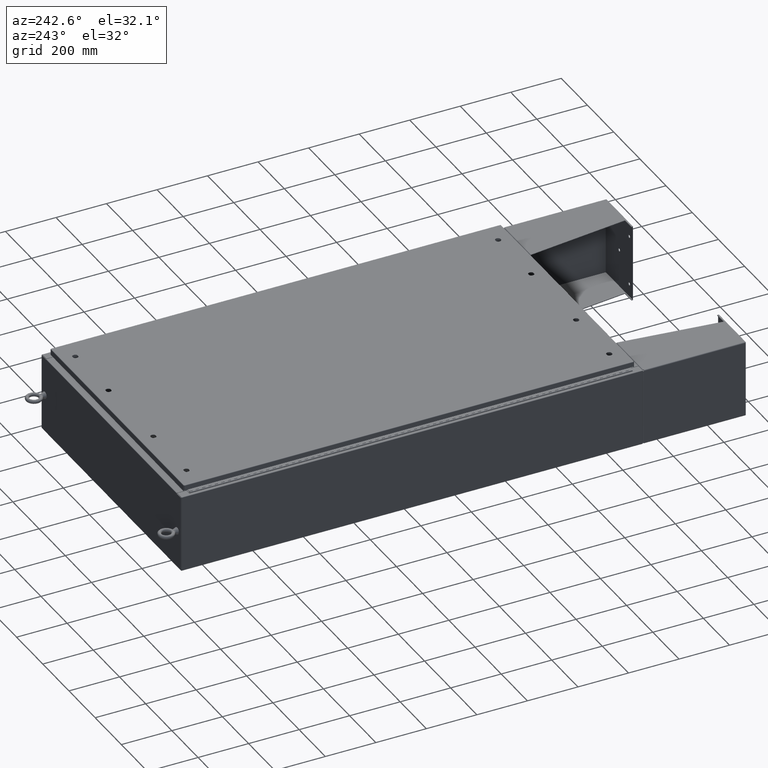
[diagram: clean part render]
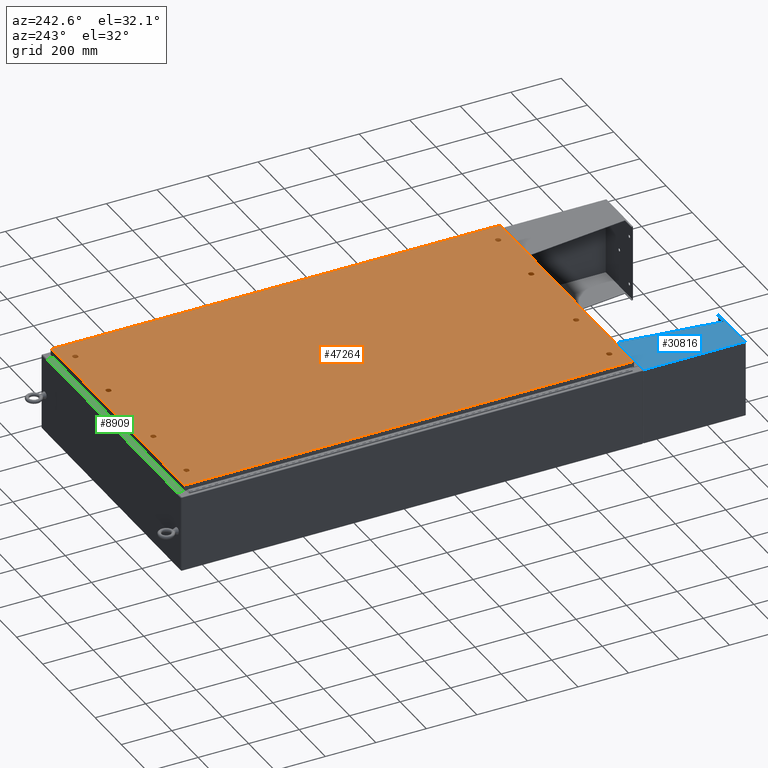
[diagram: same view with three faces highlighted in distinct colors, each labeled with its STEP entity id]
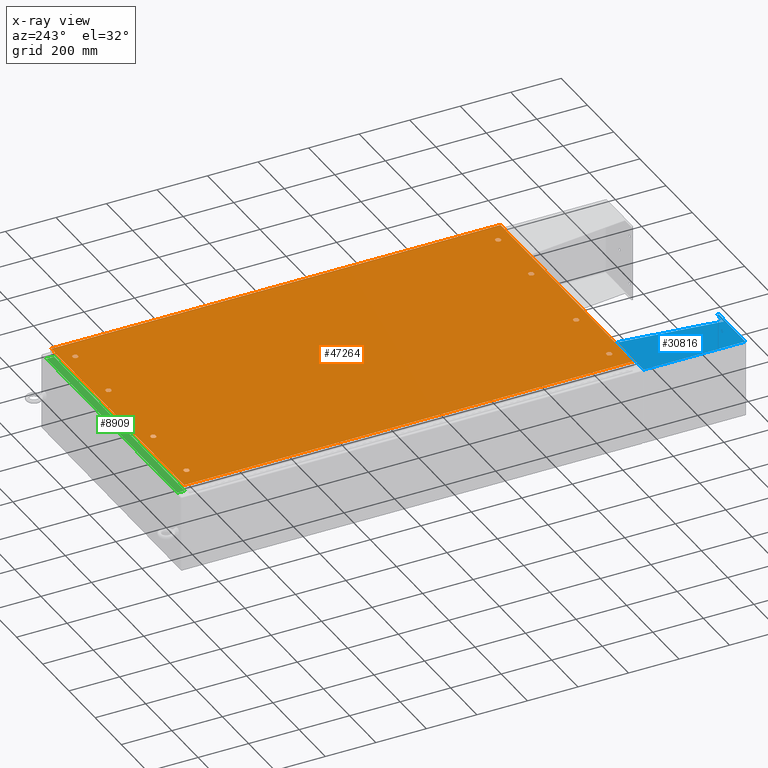
[diagram: x-ray of the same camera — body ghosted, the three highlighted faces saturated]
A machine part, auxiliary view with three faces highlighted in distinct colors.
The next image is the same camera in x-ray (body ghosted, the three faces saturated) — at least one of them is partly hidden behind the body in this view.
Their STEP definitions:

[orange] entity #47264 — the highlighted planar face has unit normal (0, 0, -1).
#293 = CIRCLE ( 'NONE', #4881, 0.4424999999999983400 ) ;
#585 = DIRECTION ( 'NONE',  ( -6.982962677686266700E-015, -6.982962677686266700E-015, 1.000000000000000000 ) ) ;
#710 = CARTESIAN_POINT ( 'NONE',  ( -16.90245237526787400, -32.54930000000000900, -2.493734682567285900E-013 ) ) ;
#895 = CARTESIAN_POINT ( 'NONE',  ( 6.550547624732095300, 33.33929999999998700, -4.574222958191068000E-014 ) ) ;
#905 = EDGE_LOOP ( 'NONE', ( #55209, #30829, #27251, #27932, #25449 ) ) ;
#1013 = DIRECTION ( 'NONE',  ( -1.000000000000000000, 0.0000000000000000000, 6.982962677686270700E-015 ) ) ;
#1198 = VECTOR ( 'NONE', #38113, 39.37007874015748100 ) ;
#2032 = AXIS2_PLACEMENT_3D ( 'NONE', #64810, #31920, #70377 ) ;
#2733 = VERTEX_POINT ( 'NONE', #14207 ) ;
#2934 = DIRECTION ( 'NONE',  ( 0.0000000000000000000, 0.0000000000000000000, 1.000000000000000000 ) ) ;
#3075 = CARTESIAN_POINT ( 'NONE',  ( 19.99030000000000100, 35.00630000000001000, 1.946441695485787500E-015 ) ) ;
#3089 = CIRCLE ( 'NONE', #41182, 0.4424999999999961700 ) ;
#3879 = ORIENTED_EDGE ( 'NONE', *, *, #32485, .F. ) ;
#4237 = CARTESIAN_POINT ( 'NONE',  ( -6.550547624732101500, 32.54930000000000200, 0.0000000000000000000 ) ) ;
#4491 = VERTEX_POINT ( 'NONE', #33247 ) ;
#4600 = VECTOR ( 'NONE', #66084, 39.37007874015748100 ) ;
#4881 = AXIS2_PLACEMENT_3D ( 'NONE', #6999, #45329, #12556 ) ;
#5014 = CARTESIAN_POINT ( 'NONE',  ( -16.70299999999999200, 32.94429999999999800, 0.0000000000000000000 ) ) ;
#5166 = CARTESIAN_POINT ( 'NONE',  ( 16.50354762473209600, -33.33929999999998700, -1.343139614880267800E-014 ) ) ;
#5335 = EDGE_CURVE ( 'NONE', #20873, #2733, #50172, .T. ) ;
#5337 = VERTEX_POINT ( 'NONE', #48410 ) ;
#5944 = EDGE_LOOP ( 'NONE', ( #41771, #13524, #65121, #58988, #30110 ) ) ;
#6321 = VECTOR ( 'NONE', #25660, 39.37007874015748100 ) ;
#6546 = CARTESIAN_POINT ( 'NONE',  ( -16.90245237526787000, 33.33929999999999400, 0.0000000000000000000 ) ) ;
#6698 = CARTESIAN_POINT ( 'NONE',  ( -16.70299999999999200, -32.94430000000000500, -2.521317385144146400E-013 ) ) ;
#6999 = CARTESIAN_POINT ( 'NONE',  ( -6.749999999999989300, -32.94429999999999100, -2.521317385144146900E-013 ) ) ;
#7023 = EDGE_CURVE ( 'NONE', #39996, #70562, #49230, .T. ) ;
#7587 = DIRECTION ( 'NONE',  ( 6.982962677686266700E-015, -0.0000000000000000000, 1.000000000000000000 ) ) ;
#7700 = CARTESIAN_POINT ( 'NONE',  ( -6.550547624732098000, -33.33929999999998700, -2.548900087721007400E-013 ) ) ;
#7892 = EDGE_CURVE ( 'NONE', #15484, #64513, #24035, .T. ) ;
#8643 = VERTEX_POINT ( 'NONE', #48140 ) ;
#9080 = FACE_OUTER_BOUND ( 'NONE', #47748, .T. ) ;
#9103 = CARTESIAN_POINT ( 'NONE',  ( -16.70299999999999200, 32.94429999999999800, 0.0000000000000000000 ) ) ;
#9234 = DIRECTION ( 'NONE',  ( 0.0000000000000000000, -1.000000000000000000, 0.0000000000000000000 ) ) ;
#9278 = CARTESIAN_POINT ( 'NONE',  ( -6.550547624732095300, 33.33929999999998700, 0.0000000000000000000 ) ) ;
#9435 = VECTOR ( 'NONE', #40924, 39.37007874015748100 ) ;
#9884 = CARTESIAN_POINT ( 'NONE',  ( 16.50354762473209600, 33.33929999999998700, -2.414586126232980000E-013 ) ) ;
#9920 = EDGE_CURVE ( 'NONE', #19089, #11204, #28032, .T. ) ;
#10017 = VERTEX_POINT ( 'NONE', #17638 ) ;
#10317 = CARTESIAN_POINT ( 'NONE',  ( -6.307499999999988600, 32.94429999999999800, 0.0000000000000000000 ) ) ;
#10461 = VECTOR ( 'NONE', #17291, 39.37007874015748100 ) ;
#10559 = VERTEX_POINT ( 'NONE', #27455 ) ;
#10655 = DIRECTION ( 'NONE',  ( 1.000000000000000000, -1.095739467627832000E-014, 6.982962677686152300E-015 ) ) ;
#10833 = FACE_BOUND ( 'NONE', #58554, .T. ) ;
#10961 = VERTEX_POINT ( 'NONE', #68908 ) ;
#11141 = DIRECTION ( 'NONE',  ( -1.000000000000000000, 0.0000000000000000000, 7.785697190086082800E-029 ) ) ;
#11204 = VERTEX_POINT ( 'NONE', #42240 ) ;
#11245 = ORIENTED_EDGE ( 'NONE', *, *, #7892, .T. ) ;
#11616 = DIRECTION ( 'NONE',  ( -6.982962677686266700E-015, -6.982962677686266700E-015, 1.000000000000000000 ) ) ;
#11640 = LINE ( 'NONE', #28782, #27803 ) ;
#11650 = EDGE_CURVE ( 'NONE', #43453, #37299, #62934, .T. ) ;
#11653 = CARTESIAN_POINT ( 'NONE',  ( -16.90245237526787400, 32.54930000000000200, 0.0000000000000000000 ) ) ;
#11661 = EDGE_CURVE ( 'NONE', #13590, #43453, #61194, .T. ) ;
#11750 = EDGE_CURVE ( 'NONE', #47706, #39996, #39836, .T. ) ;
#11770 = CARTESIAN_POINT ( 'NONE',  ( -6.550547624732101500, 32.54930000000000200, 0.0000000000000000000 ) ) ;
#12152 = AXIS2_PLACEMENT_3D ( 'NONE', #66812, #33941, #1013 ) ;
#12286 = CIRCLE ( 'NONE', #15290, 0.4424999999999983400 ) ;
#12393 = DIRECTION ( 'NONE',  ( -1.000000000000000000, -1.095739467627835000E-014, 6.982962677686269100E-015 ) ) ;
#12556 = DIRECTION ( 'NONE',  ( 0.0000000000000000000, 1.000000000000000000, 6.982962677686270700E-015 ) ) ;
#12589 = FACE_BOUND ( 'NONE', #47358, .T. ) ;
#12682 = VECTOR ( 'NONE', #9234, 39.37007874015748100 ) ;
#13003 = ORIENTED_EDGE ( 'NONE', *, *, #20647, .F. ) ;
#13006 = CIRCLE ( 'NONE', #59779, 0.4424999999999972800 ) ;
#13018 = CARTESIAN_POINT ( 'NONE',  ( 16.50354762473209600, 33.33929999999998700, -2.414586126232980000E-013 ) ) ;
#13039 = VERTEX_POINT ( 'NONE', #33840 ) ;
#13383 = VERTEX_POINT ( 'NONE', #16495 ) ;
#13434 = AXIS2_PLACEMENT_3D ( 'NONE', #5014, #2934, #18056 ) ;
#13485 = DIRECTION ( 'NONE',  ( 0.0000000000000000000, 0.0000000000000000000, 1.000000000000000000 ) ) ;
#13524 = ORIENTED_EDGE ( 'NONE', *, *, #66637, .F. ) ;
#13590 = VERTEX_POINT ( 'NONE', #710 ) ;
#13862 = ORIENTED_EDGE ( 'NONE', *, *, #27790, .F. ) ;
#13873 = CARTESIAN_POINT ( 'NONE',  ( -16.70299999999999200, -32.94430000000000500, -2.521317385144146400E-013 ) ) ;
#13954 = DIRECTION ( 'NONE',  ( -1.000000000000000000, -1.095739467627832000E-014, 6.982962677686228800E-015 ) ) ;
#14088 = CIRCLE ( 'NONE', #15137, 0.4424999999999972800 ) ;
#14154 = AXIS2_PLACEMENT_3D ( 'NONE', #57453, #24482, #62973 ) ;
#14207 = CARTESIAN_POINT ( 'NONE',  ( -6.949452375267867400, 33.33929999999999400, 0.0000000000000000000 ) ) ;
#14401 = LINE ( 'NONE', #47548, #12682 ) ;
#14662 = DIRECTION ( 'NONE',  ( 1.000000000000000000, 0.0000000000000000000, 0.0000000000000000000 ) ) ;
#14810 = EDGE_CURVE ( 'NONE', #38651, #46580, #37522, .T. ) ;
#14931 = EDGE_CURVE ( 'NONE', #11204, #39364, #69182, .T. ) ;
#15098 = EDGE_CURVE ( 'NONE', #4491, #63920, #11640, .T. ) ;
#15137 = AXIS2_PLACEMENT_3D ( 'NONE', #56071, #23141, #61591 ) ;
#15290 = AXIS2_PLACEMENT_3D ( 'NONE', #6698, #16300, #20172 ) ;
#15484 = VERTEX_POINT ( 'NONE', #69246 ) ;
#15496 = EDGE_LOOP ( 'NONE', ( #22967, #63309, #29728, #50280, #26157 ) ) ;
#15507 = VERTEX_POINT ( 'NONE', #52352 ) ;
#15843 = CARTESIAN_POINT ( 'NONE',  ( -16.90245237526787000, -33.33930000000000100, 0.0000000000000000000 ) ) ;
#15876 = LINE ( 'NONE', #32760, #1198 ) ;
#16300 = DIRECTION ( 'NONE',  ( -0.0000000000000000000, -6.982962677686266700E-015, 1.000000000000000000 ) ) ;
#16495 = CARTESIAN_POINT ( 'NONE',  ( -6.949452375267869200, 32.54930000000000200, 0.0000000000000000000 ) ) ;
#16828 = CARTESIAN_POINT ( 'NONE',  ( 6.749999999999985800, 32.94429999999999800, -4.713499807438223100E-014 ) ) ;
#16922 = EDGE_CURVE ( 'NONE', #34700, #18100, #23106, .T. ) ;
#17170 = CARTESIAN_POINT ( 'NONE',  ( -6.749999999999985800, 32.94429999999999800, 0.0000000000000000000 ) ) ;
#17291 = DIRECTION ( 'NONE',  ( 1.000000000000000000, -0.0000000000000000000, -0.0000000000000000000 ) ) ;
#17421 = DIRECTION ( 'NONE',  ( 0.0000000000000000000, 0.0000000000000000000, 1.000000000000000000 ) ) ;
#17509 = AXIS2_PLACEMENT_3D ( 'NONE', #70298, #17421, #27568 ) ;
#17526 = CARTESIAN_POINT ( 'NONE',  ( -6.749999999999989300, -32.94429999999999100, -2.521317385144146900E-013 ) ) ;
#17638 = CARTESIAN_POINT ( 'NONE',  ( 7.192499999999983000, 32.94429999999999800, -5.022495905925838200E-014 ) ) ;
#17715 = AXIS2_PLACEMENT_3D ( 'NONE', #40537, #7587, #45932 ) ;
#17804 = ORIENTED_EDGE ( 'NONE', *, *, #53003, .T. ) ;
#17894 = DIRECTION ( 'NONE',  ( -0.0000000000000000000, -6.982962677686266700E-015, 1.000000000000000000 ) ) ;
#18056 = DIRECTION ( 'NONE',  ( 1.000000000000000000, 0.0000000000000000000, 0.0000000000000000000 ) ) ;
#18100 = VERTEX_POINT ( 'NONE', #57771 ) ;
#18474 = EDGE_CURVE ( 'NONE', #2733, #13383, #59860, .T. ) ;
#18628 = DIRECTION ( 'NONE',  ( 0.0000000000000000000, 1.000000000000000000, 0.0000000000000000000 ) ) ;
#18671 = CARTESIAN_POINT ( 'NONE',  ( -16.70299999999999200, 32.94429999999999800, 0.0000000000000000000 ) ) ;
#18818 = CIRCLE ( 'NONE', #60801, 0.4424999999999983400 ) ;
#18980 = ORIENTED_EDGE ( 'NONE', *, *, #24139, .F. ) ;
#19089 = VERTEX_POINT ( 'NONE', #57357 ) ;
#19317 = DIRECTION ( 'NONE',  ( 0.0000000000000000000, 1.000000000000000000, 6.982962677686270700E-015 ) ) ;
#20172 = DIRECTION ( 'NONE',  ( 0.0000000000000000000, 1.000000000000000000, 6.982962677686270700E-015 ) ) ;
#20317 = VECTOR ( 'NONE', #35226, 39.37007874015748100 ) ;
#20647 = EDGE_CURVE ( 'NONE', #44249, #57509, #12286, .T. ) ;
#20829 = LINE ( 'NONE', #71178, #6321 ) ;
#20873 = VERTEX_POINT ( 'NONE', #9278 ) ;
#21019 = VECTOR ( 'NONE', #22581, 39.37007874015748100 ) ;
#21283 = ORIENTED_EDGE ( 'NONE', *, *, #54028, .F. ) ;
#21690 = DIRECTION ( 'NONE',  ( 6.982962677686266700E-015, -0.0000000000000000000, 1.000000000000000000 ) ) ;
#22191 = DIRECTION ( 'NONE',  ( -1.000000000000000000, 0.0000000000000000000, 6.982962677686251700E-015 ) ) ;
#22581 = DIRECTION ( 'NONE',  ( -1.000000000000000000, 0.0000000000000000000, 7.785697190086040200E-029 ) ) ;
#22702 = LINE ( 'NONE', #34034, #50163 ) ;
#22728 = CARTESIAN_POINT ( 'NONE',  ( 16.70299999999999200, -32.94429999999999100, -9.280357398645096400E-015 ) ) ;
#22895 = DIRECTION ( 'NONE',  ( 0.0000000000000000000, 1.000000000000000000, 6.982962677686270700E-015 ) ) ;
#22967 = ORIENTED_EDGE ( 'NONE', *, *, #26527, .F. ) ;
#23081 = CARTESIAN_POINT ( 'NONE',  ( -16.50354762473210700, 32.54930000000000200, 0.0000000000000000000 ) ) ;
#23106 = CIRCLE ( 'NONE', #35388, 0.4424999999999961700 ) ;
#23141 = DIRECTION ( 'NONE',  ( -6.982962677686266700E-015, -6.982962677686266700E-015, 1.000000000000000000 ) ) ;
#23197 = EDGE_CURVE ( 'NONE', #70917, #62651, #41944, .T. ) ;
#23575 = FACE_BOUND ( 'NONE', #15496, .T. ) ;
#23710 = LINE ( 'NONE', #68069, #20317 ) ;
#23925 = DIRECTION ( 'NONE',  ( 1.000000000000000000, 1.095739467627835000E-014, 7.785697190085976300E-029 ) ) ;
#24035 = LINE ( 'NONE', #53313, #53293 ) ;
#24049 = DIRECTION ( 'NONE',  ( 1.000000000000000000, 0.0000000000000000000, 0.0000000000000000000 ) ) ;
#24139 = EDGE_CURVE ( 'NONE', #18100, #64523, #15876, .T. ) ;
#24376 = CARTESIAN_POINT ( 'NONE',  ( 6.949452375267867400, 33.33929999999999400, 0.0000000000000000000 ) ) ;
#24482 = DIRECTION ( 'NONE',  ( 0.0000000000000000000, 0.0000000000000000000, -1.000000000000000000 ) ) ;
#24505 = EDGE_CURVE ( 'NONE', #32435, #68309, #20829, .T. ) ;
#24510 = ORIENTED_EDGE ( 'NONE', *, *, #65850, .F. ) ;
#24788 = CARTESIAN_POINT ( 'NONE',  ( 16.50354762473210700, -32.54929999999999500, -7.914855633430561400E-015 ) ) ;
#25040 = VECTOR ( 'NONE', #56244, 39.37007874015748100 ) ;
#25233 = VECTOR ( 'NONE', #13954, 39.37007874015748100 ) ;
#25449 = ORIENTED_EDGE ( 'NONE', *, *, #28658, .F. ) ;
#25635 = LINE ( 'NONE', #62646, #9435 ) ;
#25660 = DIRECTION ( 'NONE',  ( -1.000000000000000000, 1.095739467627832000E-014, 0.0000000000000000000 ) ) ;
#25739 = DIRECTION ( 'NONE',  ( 6.982962677686266700E-015, -0.0000000000000000000, 1.000000000000000000 ) ) ;
#25852 = EDGE_CURVE ( 'NONE', #15507, #47544, #35520, .T. ) ;
#26050 = ORIENTED_EDGE ( 'NONE', *, *, #11661, .F. ) ;
#26157 = ORIENTED_EDGE ( 'NONE', *, *, #23197, .F. ) ;
#26202 = ORIENTED_EDGE ( 'NONE', *, *, #29718, .F. ) ;
#26421 = VECTOR ( 'NONE', #12393, 39.37007874015748100 ) ;
#26527 = EDGE_CURVE ( 'NONE', #13383, #70917, #54196, .T. ) ;
#26713 = CARTESIAN_POINT ( 'NONE',  ( -16.50354762473209600, 33.33929999999998700, 0.0000000000000000000 ) ) ;
#27216 = AXIS2_PLACEMENT_3D ( 'NONE', #17170, #68561, #70843 ) ;
#27251 = ORIENTED_EDGE ( 'NONE', *, *, #14810, .F. ) ;
#27455 = CARTESIAN_POINT ( 'NONE',  ( -19.99030000000000800, 35.00630000000000300, 1.929367645525385800E-015 ) ) ;
#27479 = CARTESIAN_POINT ( 'NONE',  ( 6.550547624732101500, 32.54930000000000200, -4.574222958191072400E-014 ) ) ;
#27568 = DIRECTION ( 'NONE',  ( 1.000000000000000000, 0.0000000000000000000, 0.0000000000000000000 ) ) ;
#27770 = DIRECTION ( 'NONE',  ( 6.982962677686266700E-015, -0.0000000000000000000, 1.000000000000000000 ) ) ;
#27790 = EDGE_CURVE ( 'NONE', #8643, #19089, #43852, .T. ) ;
#27803 = VECTOR ( 'NONE', #28378, 39.37007874015748100 ) ;
#27835 = AXIS2_PLACEMENT_3D ( 'NONE', #44831, #21690, #32470 ) ;
#27932 = ORIENTED_EDGE ( 'NONE', *, *, #55085, .F. ) ;
#28032 = CIRCLE ( 'NONE', #27835, 0.4424999999999961700 ) ;
#28053 = VERTEX_POINT ( 'NONE', #41330 ) ;
#28069 = CARTESIAN_POINT ( 'NONE',  ( -16.50354762473210700, -32.54930000000000900, -2.493734682567286400E-013 ) ) ;
#28175 = CARTESIAN_POINT ( 'NONE',  ( -16.70299999999999200, -32.94430000000000500, -2.521317385144146400E-013 ) ) ;
#28197 = DIRECTION ( 'NONE',  ( -0.0000000000000000000, -6.982962677686266700E-015, 1.000000000000000000 ) ) ;
#28234 = EDGE_CURVE ( 'NONE', #37299, #44249, #47152, .T. ) ;
#28255 = AXIS2_PLACEMENT_3D ( 'NONE', #44410, #11616, #49868 ) ;
#28378 = DIRECTION ( 'NONE',  ( -1.000000000000000000, -0.0000000000000000000, -6.982962677686228100E-015 ) ) ;
#28383 = DIRECTION ( 'NONE',  ( 1.000000000000000000, 0.0000000000000000000, -6.982962677686286400E-015 ) ) ;
#28412 = VERTEX_POINT ( 'NONE', #53824 ) ;
#28658 = EDGE_CURVE ( 'NONE', #5337, #38361, #47084, .T. ) ;
#28782 = CARTESIAN_POINT ( 'NONE',  ( 6.550547624732104200, -32.54930000000000200, -2.036312386748179300E-013 ) ) ;
#29103 = DIRECTION ( 'NONE',  ( 1.000000000000000000, 0.0000000000000000000, 6.982962677686271400E-015 ) ) ;
#29209 = ORIENTED_EDGE ( 'NONE', *, *, #11650, .F. ) ;
#29231 = ORIENTED_EDGE ( 'NONE', *, *, #66279, .F. ) ;
#29627 = DIRECTION ( 'NONE',  ( -6.982962677686266700E-015, -6.982962677686266700E-015, 1.000000000000000000 ) ) ;
#29718 = EDGE_CURVE ( 'NONE', #10961, #15507, #23710, .T. ) ;
#29728 = ORIENTED_EDGE ( 'NONE', *, *, #5335, .F. ) ;
#29819 = DIRECTION ( 'NONE',  ( -6.982962677686266700E-015, -6.982962677686266700E-015, 1.000000000000000000 ) ) ;
#30110 = ORIENTED_EDGE ( 'NONE', *, *, #7023, .F. ) ;
#30829 = ORIENTED_EDGE ( 'NONE', *, *, #55548, .F. ) ;
#30932 = EDGE_LOOP ( 'NONE', ( #37066, #46143, #13862, #51331, #24510 ) ) ;
#31920 = DIRECTION ( 'NONE',  ( -6.982962677686266700E-015, -6.982962677686266700E-015, 1.000000000000000000 ) ) ;
#32352 = ORIENTED_EDGE ( 'NONE', *, *, #69688, .F. ) ;
#32435 = VERTEX_POINT ( 'NONE', #26713 ) ;
#32470 = DIRECTION ( 'NONE',  ( -1.000000000000000000, 0.0000000000000000000, 6.982962677686304600E-015 ) ) ;
#32485 = EDGE_CURVE ( 'NONE', #10017, #33201, #13006, .T. ) ;
#32760 = CARTESIAN_POINT ( 'NONE',  ( 16.50354762473210700, -32.54929999999999500, -7.914855633430561400E-015 ) ) ;
#32968 = CARTESIAN_POINT ( 'NONE',  ( -16.50354762473210700, -32.54930000000000900, -2.493734682567286400E-013 ) ) ;
#32984 = EDGE_LOOP ( 'NONE', ( #37433, #3879, #21283, #62246, #36149 ) ) ;
#33181 = EDGE_CURVE ( 'NONE', #67248, #5337, #63876, .T. ) ;
#33201 = VERTEX_POINT ( 'NONE', #24376 ) ;
#33247 = CARTESIAN_POINT ( 'NONE',  ( 6.949452375267873600, -32.54930000000000200, 0.0000000000000000000 ) ) ;
#33522 = CARTESIAN_POINT ( 'NONE',  ( 6.749999999999989300, -32.94429999999999800, -2.049967404400324900E-013 ) ) ;
#33596 = VERTEX_POINT ( 'NONE', #27479 ) ;
#33840 = CARTESIAN_POINT ( 'NONE',  ( -19.99030000000000800, -35.00630000000001000, 1.946441695485787500E-015 ) ) ;
#33941 = DIRECTION ( 'NONE',  ( 6.982962677686266700E-015, -0.0000000000000000000, 1.000000000000000000 ) ) ;
#34034 = CARTESIAN_POINT ( 'NONE',  ( 6.550547624732101500, 32.54930000000000200, -4.574222958191072400E-014 ) ) ;
#34233 = EDGE_CURVE ( 'NONE', #47544, #4491, #40633, .T. ) ;
#34299 = ORIENTED_EDGE ( 'NONE', *, *, #53835, .T. ) ;
#34700 = VERTEX_POINT ( 'NONE', #56510 ) ;
#34765 = ORIENTED_EDGE ( 'NONE', *, *, #15098, .F. ) ;
#35021 = CIRCLE ( 'NONE', #12152, 0.4424999999999983400 ) ;
#35226 = DIRECTION ( 'NONE',  ( 1.000000000000000000, -1.095739467627835000E-014, 6.982962677686171300E-015 ) ) ;
#35388 = AXIS2_PLACEMENT_3D ( 'NONE', #22728, #29819, #29103 ) ;
#35520 = CIRCLE ( 'NONE', #28255, 0.4424999999999972800 ) ;
#35749 = VECTOR ( 'NONE', #53725, 39.37007874015748100 ) ;
#36111 = ORIENTED_EDGE ( 'NONE', *, *, #62863, .F. ) ;
#36149 = ORIENTED_EDGE ( 'NONE', *, *, #36724, .F. ) ;
#36481 = VECTOR ( 'NONE', #11141, 39.37007874015748100 ) ;
#36724 = EDGE_CURVE ( 'NONE', #55601, #33596, #48468, .T. ) ;
#36887 = AXIS2_PLACEMENT_3D ( 'NONE', #28175, #28197, #45675 ) ;
#37066 = ORIENTED_EDGE ( 'NONE', *, *, #14931, .F. ) ;
#37299 = VERTEX_POINT ( 'NONE', #39345 ) ;
#37433 = ORIENTED_EDGE ( 'NONE', *, *, #57543, .F. ) ;
#37522 = LINE ( 'NONE', #56360, #21019 ) ;
#37898 = EDGE_CURVE ( 'NONE', #57509, #13590, #67327, .T. ) ;
#38113 = DIRECTION ( 'NONE',  ( -1.000000000000000000, -0.0000000000000000000, -6.982962677686306200E-015 ) ) ;
#38361 = VERTEX_POINT ( 'NONE', #43226 ) ;
#38391 = FACE_BOUND ( 'NONE', #5944, .T. ) ;
#38605 = CIRCLE ( 'NONE', #49541, 0.4424999999999983400 ) ;
#38651 = VERTEX_POINT ( 'NONE', #64177 ) ;
#38752 = CARTESIAN_POINT ( 'NONE',  ( -6.550547624732094400, 33.33929999999998700, 0.0000000000000000000 ) ) ;
#38867 = LINE ( 'NONE', #50761, #51559 ) ;
#39094 = DIRECTION ( 'NONE',  ( 1.000000000000000000, 0.0000000000000000000, 6.982962677686287200E-015 ) ) ;
#39153 = DIRECTION ( 'NONE',  ( -1.000000000000000000, -0.0000000000000000000, -0.0000000000000000000 ) ) ;
#39345 = CARTESIAN_POINT ( 'NONE',  ( -16.50354762473209600, -33.33930000000000100, -2.548900087721006900E-013 ) ) ;
#39364 = VERTEX_POINT ( 'NONE', #9884 ) ;
#39836 = LINE ( 'NONE', #23081, #25040 ) ;
#39996 = VERTEX_POINT ( 'NONE', #41784 ) ;
#40537 = CARTESIAN_POINT ( 'NONE',  ( 6.749999999999985800, 32.94429999999999800, -4.713499807438223100E-014 ) ) ;
#40633 = CIRCLE ( 'NONE', #68696, 0.4424999999999972800 ) ;
#40924 = DIRECTION ( 'NONE',  ( 1.000000000000000000, 0.0000000000000000000, -6.982962677686265900E-015 ) ) ;
#41182 = AXIS2_PLACEMENT_3D ( 'NONE', #9103, #47404, #14662 ) ;
#41330 = CARTESIAN_POINT ( 'NONE',  ( 6.949452375267869200, 32.54930000000000200, -4.852776656685374400E-014 ) ) ;
#41760 = FACE_BOUND ( 'NONE', #32984, .T. ) ;
#41771 = ORIENTED_EDGE ( 'NONE', *, *, #11750, .F. ) ;
#41784 = CARTESIAN_POINT ( 'NONE',  ( -16.50354762473210700, 32.54930000000000200, 0.0000000000000000000 ) ) ;
#41851 = AXIS2_PLACEMENT_3D ( 'NONE', #13873, #52141, #19317 ) ;
#41944 = CIRCLE ( 'NONE', #27216, 0.4424999999999972800 ) ;
#42240 = CARTESIAN_POINT ( 'NONE',  ( 16.90245237526787000, 33.33929999999999400, 0.0000000000000000000 ) ) ;
#42409 = EDGE_CURVE ( 'NONE', #28412, #8643, #25635, .T. ) ;
#43226 = CARTESIAN_POINT ( 'NONE',  ( -6.307499999999991200, -32.94429999999999100, -2.521317385144146900E-013 ) ) ;
#43453 = VERTEX_POINT ( 'NONE', #15843 ) ;
#43852 = CIRCLE ( 'NONE', #44517, 0.4424999999999961700 ) ;
#44249 = VERTEX_POINT ( 'NONE', #49692 ) ;
#44314 = CARTESIAN_POINT ( 'NONE',  ( 19.99030000000000100, 35.00630000000001000, 1.946441695485787500E-015 ) ) ;
#44410 = CARTESIAN_POINT ( 'NONE',  ( 6.749999999999989300, -32.94429999999999800, -2.049967404400324900E-013 ) ) ;
#44517 = AXIS2_PLACEMENT_3D ( 'NONE', #60706, #27770, #66290 ) ;
#44566 = CARTESIAN_POINT ( 'NONE',  ( -16.26049999999999300, 32.94429999999999800, 0.0000000000000000000 ) ) ;
#44831 = CARTESIAN_POINT ( 'NONE',  ( 16.70299999999999200, 32.94429999999999800, -2.428513811157696100E-013 ) ) ;
#45013 = EDGE_CURVE ( 'NONE', #70562, #32435, #18818, .T. ) ;
#45329 = DIRECTION ( 'NONE',  ( -0.0000000000000000000, -6.982962677686266700E-015, 1.000000000000000000 ) ) ;
#45675 = DIRECTION ( 'NONE',  ( 0.0000000000000000000, 1.000000000000000000, 6.982962677686270700E-015 ) ) ;
#45932 = DIRECTION ( 'NONE',  ( -1.000000000000000000, 0.0000000000000000000, 6.982962677686251700E-015 ) ) ;
#46143 = ORIENTED_EDGE ( 'NONE', *, *, #9920, .F. ) ;
#46248 = CARTESIAN_POINT ( 'NONE',  ( -6.749999999999985800, 32.94429999999999800, 0.0000000000000000000 ) ) ;
#46358 = AXIS2_PLACEMENT_3D ( 'NONE', #50629, #17894, #56189 ) ;
#46366 = PLANE ( 'NONE',  #14154 ) ;
#46580 = VERTEX_POINT ( 'NONE', #51740 ) ;
#46775 = VECTOR ( 'NONE', #39153, 39.37007874015748100 ) ;
#47084 = CIRCLE ( 'NONE', #46358, 0.4424999999999983400 ) ;
#47152 = CIRCLE ( 'NONE', #41851, 0.4424999999999983400 ) ;
#47264 = ADVANCED_FACE ( 'NONE', ( #54571, #12589, #10833, #67521, #41760, #52826, #38391, #23575, #9080 ), #46366, .F. ) ;
#47358 = EDGE_LOOP ( 'NONE', ( #18980, #47591, #29231, #32352, #36111 ) ) ;
#47404 = DIRECTION ( 'NONE',  ( 0.0000000000000000000, 0.0000000000000000000, 1.000000000000000000 ) ) ;
#47485 = VECTOR ( 'NONE', #23925, 39.37007874015748100 ) ;
#47544 = VERTEX_POINT ( 'NONE', #48720 ) ;
#47548 = CARTESIAN_POINT ( 'NONE',  ( -19.99030000000000800, 35.00630000000000300, 1.929367645525385800E-015 ) ) ;
#47591 = ORIENTED_EDGE ( 'NONE', *, *, #16922, .F. ) ;
#47706 = VERTEX_POINT ( 'NONE', #11653 ) ;
#47748 = EDGE_LOOP ( 'NONE', ( #64525, #11245, #34299, #17804 ) ) ;
#47874 = ORIENTED_EDGE ( 'NONE', *, *, #34233, .F. ) ;
#48140 = CARTESIAN_POINT ( 'NONE',  ( 16.90245237526787400, 32.54930000000000200, -2.442441496082410700E-013 ) ) ;
#48301 = CARTESIAN_POINT ( 'NONE',  ( -16.50354762473209600, -33.33930000000000100, -2.548900087721006900E-013 ) ) ;
#48410 = CARTESIAN_POINT ( 'NONE',  ( -6.550547624732098800, -33.33929999999998700, -2.548900087721007400E-013 ) ) ;
#48468 = CIRCLE ( 'NONE', #60928, 0.4424999999999972800 ) ;
#48720 = CARTESIAN_POINT ( 'NONE',  ( 7.192499999999986600, -32.94429999999999800, -2.019067794551563100E-013 ) ) ;
#49230 = CIRCLE ( 'NONE', #13434, 0.4424999999999983400 ) ;
#49541 = AXIS2_PLACEMENT_3D ( 'NONE', #62518, #29627, #68145 ) ;
#49692 = CARTESIAN_POINT ( 'NONE',  ( -16.26049999999999300, -32.94430000000000500, -2.521317385144146400E-013 ) ) ;
#49868 = DIRECTION ( 'NONE',  ( 1.000000000000000000, 0.0000000000000000000, 6.982962677686287200E-015 ) ) ;
#50163 = VECTOR ( 'NONE', #28383, 39.37007874015748100 ) ;
#50172 = LINE ( 'NONE', #38752, #35749 ) ;
#50280 = ORIENTED_EDGE ( 'NONE', *, *, #58291, .F. ) ;
#50629 = CARTESIAN_POINT ( 'NONE',  ( -6.749999999999989300, -32.94429999999999100, -2.521317385144146900E-013 ) ) ;
#50761 = CARTESIAN_POINT ( 'NONE',  ( -19.99030000000000800, -35.00630000000001000, 1.946441695485787500E-015 ) ) ;
#51299 = VERTEX_POINT ( 'NONE', #61995 ) ;
#51331 = ORIENTED_EDGE ( 'NONE', *, *, #42409, .F. ) ;
#51559 = VECTOR ( 'NONE', #56335, 39.37007874015748100 ) ;
#51740 = CARTESIAN_POINT ( 'NONE',  ( -6.949452375267873600, -32.54929999999999500, -2.493734682567286400E-013 ) ) ;
#51746 = DIRECTION ( 'NONE',  ( 1.000000000000000000, 0.0000000000000000000, 0.0000000000000000000 ) ) ;
#52141 = DIRECTION ( 'NONE',  ( -0.0000000000000000000, -6.982962677686266700E-015, 1.000000000000000000 ) ) ;
#52284 = AXIS2_PLACEMENT_3D ( 'NONE', #46248, #13485, #51746 ) ;
#52352 = CARTESIAN_POINT ( 'NONE',  ( 6.949452375267870100, -33.33929999999999400, -2.063622422052470200E-013 ) ) ;
#52826 = FACE_BOUND ( 'NONE', #30932, .T. ) ;
#53003 = EDGE_CURVE ( 'NONE', #10559, #13039, #14401, .T. ) ;
#53293 = VECTOR ( 'NONE', #18628, 39.37007874015748100 ) ;
#53313 = CARTESIAN_POINT ( 'NONE',  ( 19.99030000000000500, -35.00630000000000300, 1.946441695485787500E-015 ) ) ;
#53725 = DIRECTION ( 'NONE',  ( -1.000000000000000000, 1.095739467627835000E-014, 0.0000000000000000000 ) ) ;
#53824 = CARTESIAN_POINT ( 'NONE',  ( 16.50354762473210700, 32.54930000000000200, -2.414586126232981000E-013 ) ) ;
#53835 = EDGE_CURVE ( 'NONE', #64513, #10559, #63160, .T. ) ;
#54028 = EDGE_CURVE ( 'NONE', #28053, #10017, #70918, .T. ) ;
#54196 = LINE ( 'NONE', #11770, #10461 ) ;
#54571 = FACE_BOUND ( 'NONE', #67045, .T. ) ;
#55085 = EDGE_CURVE ( 'NONE', #38361, #38651, #293, .T. ) ;
#55111 = DIRECTION ( 'NONE',  ( 6.982962677686266700E-015, -0.0000000000000000000, 1.000000000000000000 ) ) ;
#55209 = ORIENTED_EDGE ( 'NONE', *, *, #33181, .F. ) ;
#55548 = EDGE_CURVE ( 'NONE', #46580, #67248, #66368, .T. ) ;
#55601 = VERTEX_POINT ( 'NONE', #895 ) ;
#55713 = LINE ( 'NONE', #61722, #26421 ) ;
#55835 = DIRECTION ( 'NONE',  ( -0.0000000000000000000, -6.982962677686266700E-015, 1.000000000000000000 ) ) ;
#56071 = CARTESIAN_POINT ( 'NONE',  ( 6.749999999999989300, -32.94429999999999800, -2.049967404400324900E-013 ) ) ;
#56189 = DIRECTION ( 'NONE',  ( 0.0000000000000000000, 1.000000000000000000, 6.982962677686270700E-015 ) ) ;
#56244 = DIRECTION ( 'NONE',  ( 1.000000000000000000, -0.0000000000000000000, -0.0000000000000000000 ) ) ;
#56335 = DIRECTION ( 'NONE',  ( 1.000000000000000000, -0.0000000000000000000, -0.0000000000000000000 ) ) ;
#56360 = CARTESIAN_POINT ( 'NONE',  ( -6.550547624732104200, -32.54929999999999500, -2.493734682567286900E-013 ) ) ;
#56383 = CARTESIAN_POINT ( 'NONE',  ( 6.550547624732104200, -32.54930000000000200, -2.036312386748179300E-013 ) ) ;
#56510 = CARTESIAN_POINT ( 'NONE',  ( 17.14549999999998800, -32.94429999999999100, -6.190396413768948300E-015 ) ) ;
#56996 = DIRECTION ( 'NONE',  ( 0.0000000000000000000, 0.0000000000000000000, 1.000000000000000000 ) ) ;
#57357 = CARTESIAN_POINT ( 'NONE',  ( 17.14549999999998800, 32.94429999999999800, -2.459413421006457100E-013 ) ) ;
#57453 = CARTESIAN_POINT ( 'NONE',  ( 0.0000000000000000000, 0.0000000000000000000, 0.0000000000000000000 ) ) ;
#57509 = VERTEX_POINT ( 'NONE', #28069 ) ;
#57543 = EDGE_CURVE ( 'NONE', #33201, #55601, #55713, .T. ) ;
#57771 = CARTESIAN_POINT ( 'NONE',  ( 16.90245237526787400, -32.54929999999999500, 0.0000000000000000000 ) ) ;
#58291 = EDGE_CURVE ( 'NONE', #62651, #20873, #66677, .T. ) ;
#58554 = EDGE_LOOP ( 'NONE', ( #29209, #26050, #58989, #13003, #59327 ) ) ;
#58665 = CARTESIAN_POINT ( 'NONE',  ( 6.749999999999985800, 32.94429999999999800, -4.713499807438223100E-014 ) ) ;
#58814 = ORIENTED_EDGE ( 'NONE', *, *, #25852, .F. ) ;
#58847 = EDGE_CURVE ( 'NONE', #33596, #28053, #22702, .T. ) ;
#58988 = ORIENTED_EDGE ( 'NONE', *, *, #45013, .F. ) ;
#58989 = ORIENTED_EDGE ( 'NONE', *, *, #37898, .F. ) ;
#59327 = ORIENTED_EDGE ( 'NONE', *, *, #28234, .F. ) ;
#59731 = ORIENTED_EDGE ( 'NONE', *, *, #68847, .F. ) ;
#59779 = AXIS2_PLACEMENT_3D ( 'NONE', #16828, #55111, #22191 ) ;
#59860 = CIRCLE ( 'NONE', #17509, 0.4424999999999972800 ) ;
#60706 = CARTESIAN_POINT ( 'NONE',  ( 16.70299999999999200, 32.94429999999999800, -2.428513811157696100E-013 ) ) ;
#60801 = AXIS2_PLACEMENT_3D ( 'NONE', #18671, #56996, #24049 ) ;
#60928 = AXIS2_PLACEMENT_3D ( 'NONE', #58665, #25739, #64229 ) ;
#61087 = EDGE_CURVE ( 'NONE', #13039, #15484, #38867, .T. ) ;
#61194 = CIRCLE ( 'NONE', #36887, 0.4424999999999983400 ) ;
#61591 = DIRECTION ( 'NONE',  ( 1.000000000000000000, 0.0000000000000000000, 6.982962677686287200E-015 ) ) ;
#61722 = CARTESIAN_POINT ( 'NONE',  ( 6.550547624732094400, 33.33929999999998700, -4.574222958191066700E-014 ) ) ;
#61995 = CARTESIAN_POINT ( 'NONE',  ( 16.50354762473209600, -33.33929999999998700, -1.343139614880268600E-014 ) ) ;
#62246 = ORIENTED_EDGE ( 'NONE', *, *, #58847, .F. ) ;
#62518 = CARTESIAN_POINT ( 'NONE',  ( 16.70299999999999200, -32.94429999999999100, -9.280357398645096400E-015 ) ) ;
#62646 = CARTESIAN_POINT ( 'NONE',  ( 16.50354762473210700, 32.54930000000000200, -2.414586126232981000E-013 ) ) ;
#62651 = VERTEX_POINT ( 'NONE', #10317 ) ;
#62834 = VECTOR ( 'NONE', #10655, 39.37007874015748100 ) ;
#62863 = EDGE_CURVE ( 'NONE', #64523, #51299, #38605, .T. ) ;
#62934 = LINE ( 'NONE', #48301, #4600 ) ;
#62973 = DIRECTION ( 'NONE',  ( -1.000000000000000000, 0.0000000000000000000, -0.0000000000000000000 ) ) ;
#63160 = LINE ( 'NONE', #44314, #46775 ) ;
#63309 = ORIENTED_EDGE ( 'NONE', *, *, #18474, .F. ) ;
#63876 = LINE ( 'NONE', #7700, #47485 ) ;
#63920 = VERTEX_POINT ( 'NONE', #56383 ) ;
#64177 = CARTESIAN_POINT ( 'NONE',  ( -6.550547624732104200, -32.54929999999999500, -2.493734682567286900E-013 ) ) ;
#64229 = DIRECTION ( 'NONE',  ( -1.000000000000000000, 0.0000000000000000000, 6.982962677686269100E-015 ) ) ;
#64513 = VERTEX_POINT ( 'NONE', #3075 ) ;
#64523 = VERTEX_POINT ( 'NONE', #24788 ) ;
#64525 = ORIENTED_EDGE ( 'NONE', *, *, #61087, .T. ) ;
#64585 = LINE ( 'NONE', #5166, #62834 ) ;
#64810 = CARTESIAN_POINT ( 'NONE',  ( 16.70299999999999200, -32.94429999999999100, -9.280357398645096400E-015 ) ) ;
#65121 = ORIENTED_EDGE ( 'NONE', *, *, #24505, .F. ) ;
#65370 = VERTEX_POINT ( 'NONE', #68097 ) ;
#65850 = EDGE_CURVE ( 'NONE', #39364, #28412, #35021, .T. ) ;
#66084 = DIRECTION ( 'NONE',  ( 1.000000000000000000, 1.095739467627832000E-014, 7.785697190085955000E-029 ) ) ;
#66279 = EDGE_CURVE ( 'NONE', #65370, #34700, #69287, .T. ) ;
#66290 = DIRECTION ( 'NONE',  ( -1.000000000000000000, 0.0000000000000000000, 6.982962677686304600E-015 ) ) ;
#66368 = CIRCLE ( 'NONE', #69737, 0.4424999999999983400 ) ;
#66637 = EDGE_CURVE ( 'NONE', #68309, #47706, #3089, .T. ) ;
#66677 = CIRCLE ( 'NONE', #52284, 0.4424999999999972800 ) ;
#66812 = CARTESIAN_POINT ( 'NONE',  ( 16.70299999999999200, 32.94429999999999800, -2.428513811157696100E-013 ) ) ;
#67045 = EDGE_LOOP ( 'NONE', ( #34765, #47874, #58814, #26202, #59731 ) ) ;
#67248 = VERTEX_POINT ( 'NONE', #69055 ) ;
#67327 = LINE ( 'NONE', #32968, #36481 ) ;
#67521 = FACE_BOUND ( 'NONE', #905, .T. ) ;
#68069 = CARTESIAN_POINT ( 'NONE',  ( 6.550547624732098000, -33.33929999999998700, -2.091477791901900500E-013 ) ) ;
#68097 = CARTESIAN_POINT ( 'NONE',  ( 16.90245237526787000, -33.33929999999998700, -1.064585916385966400E-014 ) ) ;
#68145 = DIRECTION ( 'NONE',  ( 1.000000000000000000, 0.0000000000000000000, 6.982962677686261200E-015 ) ) ;
#68309 = VERTEX_POINT ( 'NONE', #6546 ) ;
#68561 = DIRECTION ( 'NONE',  ( 0.0000000000000000000, 0.0000000000000000000, 1.000000000000000000 ) ) ;
#68696 = AXIS2_PLACEMENT_3D ( 'NONE', #33522, #585, #39094 ) ;
#68847 = EDGE_CURVE ( 'NONE', #63920, #10961, #14088, .T. ) ;
#68908 = CARTESIAN_POINT ( 'NONE',  ( 6.550547624732098800, -33.33929999999998700, -2.091477791901900500E-013 ) ) ;
#69055 = CARTESIAN_POINT ( 'NONE',  ( -6.949452375267870100, -33.33929999999998700, 0.0000000000000000000 ) ) ;
#69182 = LINE ( 'NONE', #13018, #25233 ) ;
#69246 = CARTESIAN_POINT ( 'NONE',  ( 19.99030000000000500, -35.00630000000000300, 1.946441695485787500E-015 ) ) ;
#69287 = CIRCLE ( 'NONE', #2032, 0.4424999999999961700 ) ;
#69688 = EDGE_CURVE ( 'NONE', #51299, #65370, #64585, .T. ) ;
#69737 = AXIS2_PLACEMENT_3D ( 'NONE', #17526, #55835, #22895 ) ;
#70298 = CARTESIAN_POINT ( 'NONE',  ( -6.749999999999985800, 32.94429999999999800, 0.0000000000000000000 ) ) ;
#70377 = DIRECTION ( 'NONE',  ( 1.000000000000000000, 0.0000000000000000000, 6.982962677686271400E-015 ) ) ;
#70562 = VERTEX_POINT ( 'NONE', #44566 ) ;
#70843 = DIRECTION ( 'NONE',  ( 1.000000000000000000, 0.0000000000000000000, 0.0000000000000000000 ) ) ;
#70917 = VERTEX_POINT ( 'NONE', #4237 ) ;
#70918 = CIRCLE ( 'NONE', #17715, 0.4424999999999972800 ) ;
#71178 = CARTESIAN_POINT ( 'NONE',  ( -16.50354762473209600, 33.33929999999998700, 0.0000000000000000000 ) ) ;

[blue] entity #30816 — the highlighted planar face has unit normal (0, 0, -1).
#785 = LINE ( 'NONE', #24023, #12009 ) ;
#1313 = ORIENTED_EDGE ( 'NONE', *, *, #22484, .T. ) ;
#1901 = CARTESIAN_POINT ( 'NONE',  ( -6.000000000000000900, 8.000000000000001800, 0.03899999999999923000 ) ) ;
#4326 = CARTESIAN_POINT ( 'NONE',  ( -6.000000000000000900, -7.999999999999999100, 0.03899999999999923000 ) ) ;
#4840 = VERTEX_POINT ( 'NONE', #45291 ) ;
#5053 = EDGE_LOOP ( 'NONE', ( #24595, #29045, #1313, #66550, #49302, #34704 ) ) ;
#6911 = EDGE_CURVE ( 'NONE', #19614, #4840, #56910, .T. ) ;
#7637 = LINE ( 'NONE', #1901, #35195 ) ;
#10625 = VERTEX_POINT ( 'NONE', #66201 ) ;
#10816 = EDGE_CURVE ( 'NONE', #10625, #55119, #21049, .T. ) ;
#12009 = VECTOR ( 'NONE', #46296, 39.37007874015748100 ) ;
#12206 = EDGE_CURVE ( 'NONE', #52256, #10625, #34572, .T. ) ;
#16203 = CARTESIAN_POINT ( 'NONE',  ( -6.000000000000030200, 8.000000000000001800, 8.000999999999999400 ) ) ;
#16563 = VECTOR ( 'NONE', #42284, 39.37007874015748100 ) ;
#19380 = VECTOR ( 'NONE', #20545, 39.37007874015748100 ) ;
#19614 = VERTEX_POINT ( 'NONE', #4326 ) ;
#20545 = DIRECTION ( 'NONE',  ( -4.399772607369798900E-016, 0.9922942345449394800, 0.1239038017531047700 ) ) ;
#21049 = LINE ( 'NONE', #29755, #19380 ) ;
#21477 = DIRECTION ( 'NONE',  ( 1.000000000000000000, 0.0000000000000000000, 3.550958521948298200E-015 ) ) ;
#21572 = DIRECTION ( 'NONE',  ( 0.0000000000000000000, 1.000000000000000000, 0.0000000000000000000 ) ) ;
#21645 = CARTESIAN_POINT ( 'NONE',  ( -6.000000000000030200, -7.999999999999999100, 8.000999999999999400 ) ) ;
#22484 = EDGE_CURVE ( 'NONE', #55119, #56311, #785, .T. ) ;
#23431 = CARTESIAN_POINT ( 'NONE',  ( -6.000000000000030200, 7.857000000000001100, 8.000999999999999400 ) ) ;
#24023 = CARTESIAN_POINT ( 'NONE',  ( -6.000000000000016000, 7.857000000000001100, 8.000999999999999400 ) ) ;
#24595 = ORIENTED_EDGE ( 'NONE', *, *, #12206, .T. ) ;
#24933 = VECTOR ( 'NONE', #21572, 39.37007874015748100 ) ;
#27949 = CARTESIAN_POINT ( 'NONE',  ( -6.000000000000030200, -7.750000000000000000, 8.001000000000015400 ) ) ;
#29045 = ORIENTED_EDGE ( 'NONE', *, *, #10816, .T. ) ;
#29512 = CARTESIAN_POINT ( 'NONE',  ( -6.000000000000016000, 7.857000000000001100, 0.03900000000000031900 ) ) ;
#29755 = CARTESIAN_POINT ( 'NONE',  ( -6.000000000000023100, -7.749999999999999100, 6.052216497445934700 ) ) ;
#30816 = ADVANCED_FACE ( 'NONE', ( #68942 ), #54388, .F. ) ;
#31861 = EDGE_CURVE ( 'NONE', #4840, #52256, #54211, .T. ) ;
#34572 = LINE ( 'NONE', #42563, #16563 ) ;
#34704 = ORIENTED_EDGE ( 'NONE', *, *, #31861, .T. ) ;
#35195 = VECTOR ( 'NONE', #40383, 39.37007874015748100 ) ;
#37811 = DIRECTION ( 'NONE',  ( -3.550958521948298200E-015, 0.0000000000000000000, 1.000000000000000000 ) ) ;
#40383 = DIRECTION ( 'NONE',  ( 0.0000000000000000000, 1.000000000000000000, 0.0000000000000000000 ) ) ;
#42284 = DIRECTION ( 'NONE',  ( 3.550958521948298200E-015, 0.0000000000000000000, -1.000000000000000000 ) ) ;
#42563 = CARTESIAN_POINT ( 'NONE',  ( -6.000000000000030200, -7.750000000000000000, 8.000999999999999400 ) ) ;
#43062 = EDGE_CURVE ( 'NONE', #19614, #56311, #7637, .T. ) ;
#43398 = CARTESIAN_POINT ( 'NONE',  ( -6.000000000000030200, 8.000000000000001800, 8.000999999999999400 ) ) ;
#45291 = CARTESIAN_POINT ( 'NONE',  ( -6.000000000000030200, -7.999999999999999100, 8.000999999999999400 ) ) ;
#46296 = DIRECTION ( 'NONE',  ( 0.0000000000000000000, 0.0000000000000000000, -1.000000000000000000 ) ) ;
#49302 = ORIENTED_EDGE ( 'NONE', *, *, #6911, .T. ) ;
#52256 = VERTEX_POINT ( 'NONE', #27949 ) ;
#54211 = LINE ( 'NONE', #16203, #24933 ) ;
#54388 = PLANE ( 'NONE',  #70589 ) ;
#55119 = VERTEX_POINT ( 'NONE', #23431 ) ;
#55199 = VECTOR ( 'NONE', #37811, 39.37007874015748100 ) ;
#56311 = VERTEX_POINT ( 'NONE', #29512 ) ;
#56910 = LINE ( 'NONE', #21645, #55199 ) ;
#59903 = DIRECTION ( 'NONE',  ( 3.550958521948298200E-015, 0.0000000000000000000, -1.000000000000000000 ) ) ;
#66201 = CARTESIAN_POINT ( 'NONE',  ( -6.000000000000022200, -7.750000000000000000, 6.052216497445934700 ) ) ;
#66550 = ORIENTED_EDGE ( 'NONE', *, *, #43062, .F. ) ;
#68942 = FACE_OUTER_BOUND ( 'NONE', #5053, .T. ) ;
#70589 = AXIS2_PLACEMENT_3D ( 'NONE', #43398, #21477, #59903 ) ;

[green] entity #8909 — the highlighted planar face has unit normal (0, 0, 1).
#440 = EDGE_CURVE ( 'NONE', #67982, #62433, #64817, .T. ) ;
#3148 = DIRECTION ( 'NONE',  ( -0.0000000000000000000, -1.000000000000000000, 3.566381192773190000E-015 ) ) ;
#7649 = AXIS2_PLACEMENT_3D ( 'NONE', #68534, #19877, #65368 ) ;
#8665 = EDGE_LOOP ( 'NONE', ( #44466, #38681, #36801, #12443 ) ) ;
#8909 = ADVANCED_FACE ( 'NONE', ( #60870 ), #48632, .T. ) ;
#9674 = EDGE_CURVE ( 'NONE', #67982, #40992, #58181, .T. ) ;
#12443 = ORIENTED_EDGE ( 'NONE', *, *, #440, .T. ) ;
#14488 = VECTOR ( 'NONE', #3148, 39.37007874015748100 ) ;
#16331 = CARTESIAN_POINT ( 'NONE',  ( -19.63720000000000400, -0.07469999999999973900, 6.000000000000000900 ) ) ;
#17640 = VECTOR ( 'NONE', #20748, 39.37007874015748100 ) ;
#19877 = DIRECTION ( 'NONE',  ( 0.0000000000000000000, 3.566381192773190000E-015, 1.000000000000000000 ) ) ;
#20748 = DIRECTION ( 'NONE',  ( -1.000000000000000000, -2.782319265133790500E-017, 9.922811099463672500E-032 ) ) ;
#22331 = VECTOR ( 'NONE', #61773, 39.37007874015748100 ) ;
#22913 = CARTESIAN_POINT ( 'NONE',  ( 19.63720000000000400, -1.287299999999999900, 6.000000000000004400 ) ) ;
#32423 = CARTESIAN_POINT ( 'NONE',  ( 2.440093995522952500E-018, -0.08770000000000081900, 6.000000000000000900 ) ) ;
#33059 = DIRECTION ( 'NONE',  ( -0.0000000000000000000, 1.000000000000000000, -3.566381192773190000E-015 ) ) ;
#35959 = CARTESIAN_POINT ( 'NONE',  ( 19.63720000000000400, -1.300299999999999800, 6.000000000000004400 ) ) ;
#36801 = ORIENTED_EDGE ( 'NONE', *, *, #9674, .F. ) ;
#38681 = ORIENTED_EDGE ( 'NONE', *, *, #51248, .F. ) ;
#38781 = VECTOR ( 'NONE', #33059, 39.37007874015748100 ) ;
#40992 = VERTEX_POINT ( 'NONE', #22913 ) ;
#44466 = ORIENTED_EDGE ( 'NONE', *, *, #56896, .F. ) ;
#48632 = PLANE ( 'NONE',  #7649 ) ;
#50215 = CARTESIAN_POINT ( 'NONE',  ( 19.63720000000000400, -1.287299999999999900, 6.000000000000003600 ) ) ;
#51248 = EDGE_CURVE ( 'NONE', #40992, #60991, #66213, .T. ) ;
#56896 = EDGE_CURVE ( 'NONE', #60991, #62433, #67909, .T. ) ;
#58124 = CARTESIAN_POINT ( 'NONE',  ( 19.63720000000000400, -0.08770000000000047200, 6.000000000000000900 ) ) ;
#58181 = LINE ( 'NONE', #35959, #14488 ) ;
#60870 = FACE_OUTER_BOUND ( 'NONE', #8665, .T. ) ;
#60991 = VERTEX_POINT ( 'NONE', #66247 ) ;
#61773 = DIRECTION ( 'NONE',  ( -1.000000000000000000, 0.0000000000000000000, 0.0000000000000000000 ) ) ;
#62433 = VERTEX_POINT ( 'NONE', #68697 ) ;
#64817 = LINE ( 'NONE', #32423, #17640 ) ;
#65368 = DIRECTION ( 'NONE',  ( 0.0000000000000000000, -1.000000000000000000, 3.566381192773190000E-015 ) ) ;
#66213 = LINE ( 'NONE', #50215, #22331 ) ;
#66247 = CARTESIAN_POINT ( 'NONE',  ( -19.63720000000000400, -1.287299999999999200, 6.000000000000004400 ) ) ;
#67909 = LINE ( 'NONE', #16331, #38781 ) ;
#67982 = VERTEX_POINT ( 'NONE', #58124 ) ;
#68534 = CARTESIAN_POINT ( 'NONE',  ( 0.0000000000000000000, 2.139269213755056700E-014, 6.000000000000000900 ) ) ;
#68697 = CARTESIAN_POINT ( 'NONE',  ( -19.63720000000000400, -0.08770000000000081900, 6.000000000000000900 ) ) ;